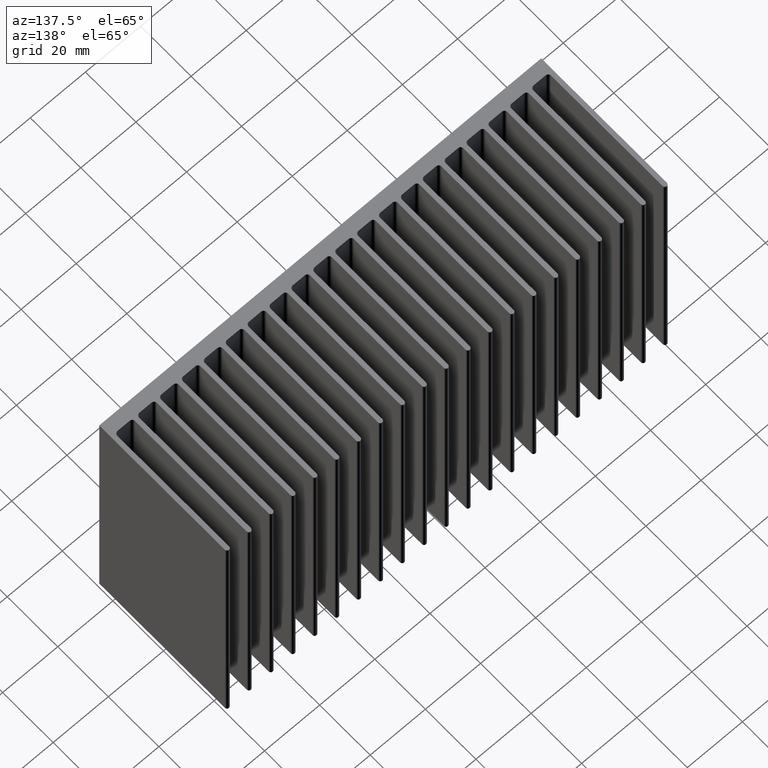
[diagram: clean part render]
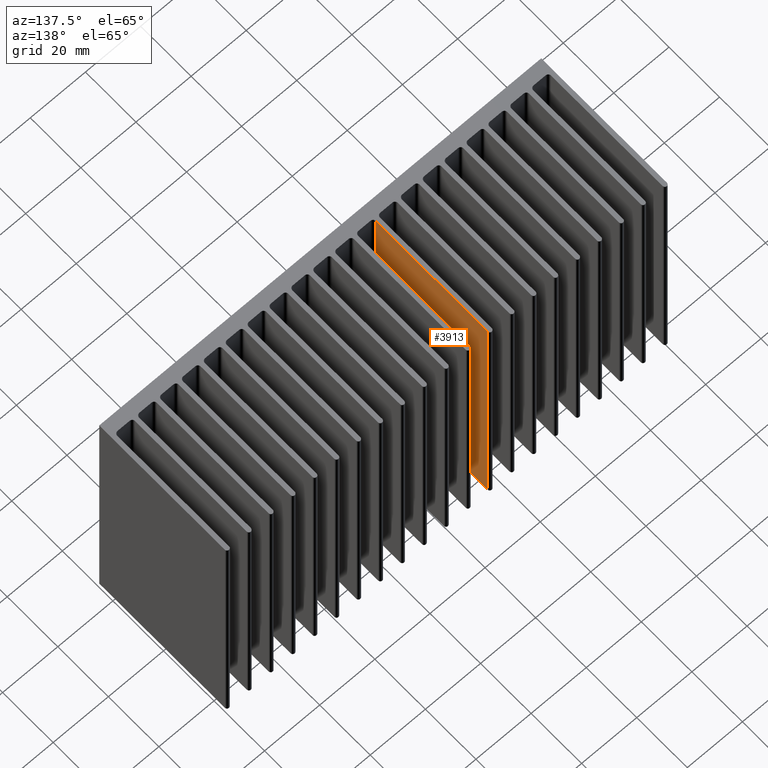
[diagram: same view with one face highlighted and labeled with its STEP entity id]
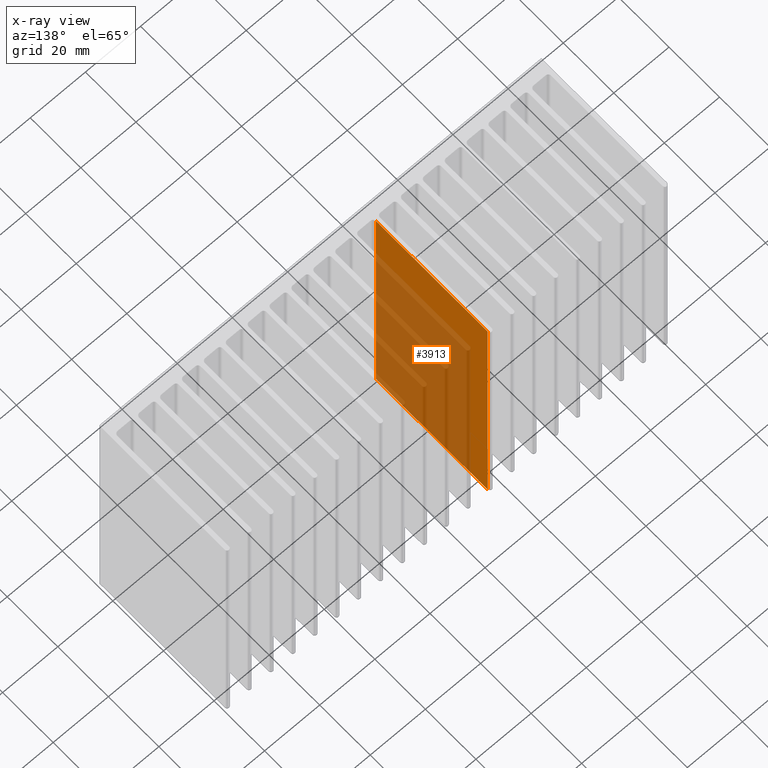
[diagram: x-ray of the same camera — body ghosted, the highlighted face saturated]
A machine part, auxiliary view. The second image highlights one B-rep face of the part: STEP entity #3913.
The next image is the same camera in x-ray: the body ghosted, the highlighted face saturated — about 67% of this face is hidden behind the body in this view.
In plain terms, the highlighted planar face has unit normal (-1, 0, 0).
Its self-contained STEP definition (entity closure, byte-faithful):
#344 = CARTESIAN_POINT ( 'NONE',  ( -15.12999999999999012, -19.75000000000029488, -50.00000000000000000 ) ) ;
#438 = EDGE_CURVE ( 'NONE', #1469, #3828, #3635, .T. ) ;
#594 = DIRECTION ( 'NONE',  ( -0.0000000000000000000, -0.0000000000000000000, -1.000000000000000000 ) ) ;
#838 = VECTOR ( 'NONE', #2990, 1000.000000000000000 ) ;
#945 = CARTESIAN_POINT ( 'NONE',  ( -15.12999999999993506, -19.75000000000029488, 50.00000000000000000 ) ) ;
#1005 = EDGE_LOOP ( 'NONE', ( #2049, #2259, #1851, #1855 ) ) ;
#1066 = LINE ( 'NONE', #344, #838 ) ;
#1345 = CARTESIAN_POINT ( 'NONE',  ( -15.12999999999975387, 24.49999999999925748, 50.00000000000000000 ) ) ;
#1435 = DIRECTION ( 'NONE',  ( 5.331579496787528679E-15, 1.000000000000000000, 0.0000000000000000000 ) ) ;
#1469 = VERTEX_POINT ( 'NONE', #3149 ) ;
#1479 = CARTESIAN_POINT ( 'NONE',  ( -15.12999999999999012, -19.75000000000029488, 50.00000000000000000 ) ) ;
#1575 = AXIS2_PLACEMENT_3D ( 'NONE', #3118, #2614, #3169 ) ;
#1630 = VERTEX_POINT ( 'NONE', #2878 ) ;
#1829 = VECTOR ( 'NONE', #594, 1000.000000000000000 ) ;
#1851 = ORIENTED_EDGE ( 'NONE', *, *, #438, .F. ) ;
#1855 = ORIENTED_EDGE ( 'NONE', *, *, #3173, .T. ) ;
#2049 = ORIENTED_EDGE ( 'NONE', *, *, #2519, .T. ) ;
#2094 = LINE ( 'NONE', #945, #1829 ) ;
#2259 = ORIENTED_EDGE ( 'NONE', *, *, #3018, .F. ) ;
#2519 = EDGE_CURVE ( 'NONE', #4039, #1630, #1066, .T. ) ;
#2597 = VECTOR ( 'NONE', #3770, 1000.000000000000000 ) ;
#2610 = CARTESIAN_POINT ( 'NONE',  ( -15.12999999999993506, -19.75000000000029488, -50.00000000000000000 ) ) ;
#2614 = DIRECTION ( 'NONE',  ( -1.000000000000000000, 5.331579496787528679E-15, 0.0000000000000000000 ) ) ;
#2834 = LINE ( 'NONE', #4146, #2597 ) ;
#2878 = CARTESIAN_POINT ( 'NONE',  ( -15.12999999999975387, 24.49999999999925748, -50.00000000000000000 ) ) ;
#2990 = DIRECTION ( 'NONE',  ( 5.331579496787528679E-15, 1.000000000000000000, 0.0000000000000000000 ) ) ;
#3018 = EDGE_CURVE ( 'NONE', #3828, #1630, #2834, .T. ) ;
#3118 = CARTESIAN_POINT ( 'NONE',  ( -15.12999999999999012, -19.75000000000029488, 50.00000000000000000 ) ) ;
#3149 = CARTESIAN_POINT ( 'NONE',  ( -15.12999999999993506, -19.75000000000029488, 50.00000000000000000 ) ) ;
#3152 = PLANE ( 'NONE',  #1575 ) ;
#3169 = DIRECTION ( 'NONE',  ( -5.331579496787528679E-15, -1.000000000000000000, 0.0000000000000000000 ) ) ;
#3173 = EDGE_CURVE ( 'NONE', #1469, #4039, #2094, .T. ) ;
#3484 = VECTOR ( 'NONE', #1435, 1000.000000000000000 ) ;
#3635 = LINE ( 'NONE', #1479, #3484 ) ;
#3770 = DIRECTION ( 'NONE',  ( -0.0000000000000000000, -0.0000000000000000000, -1.000000000000000000 ) ) ;
#3828 = VERTEX_POINT ( 'NONE', #1345 ) ;
#3891 = FACE_OUTER_BOUND ( 'NONE', #1005, .T. ) ;
#3913 = ADVANCED_FACE ( 'NONE', ( #3891 ), #3152, .F. ) ;
#4039 = VERTEX_POINT ( 'NONE', #2610 ) ;
#4146 = CARTESIAN_POINT ( 'NONE',  ( -15.12999999999975387, 24.49999999999925748, 50.00000000000000000 ) ) ;